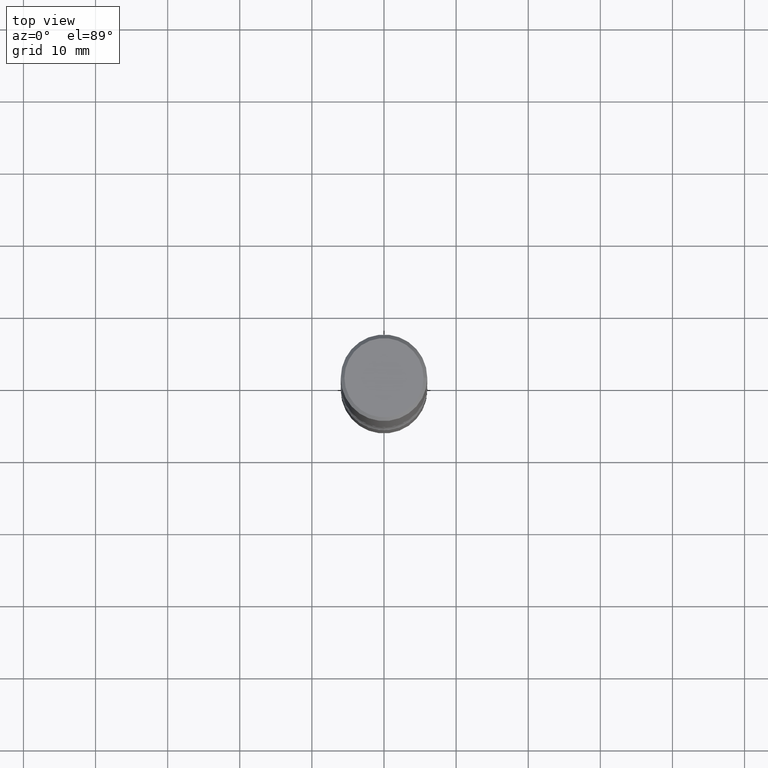
[diagram: clean part render]
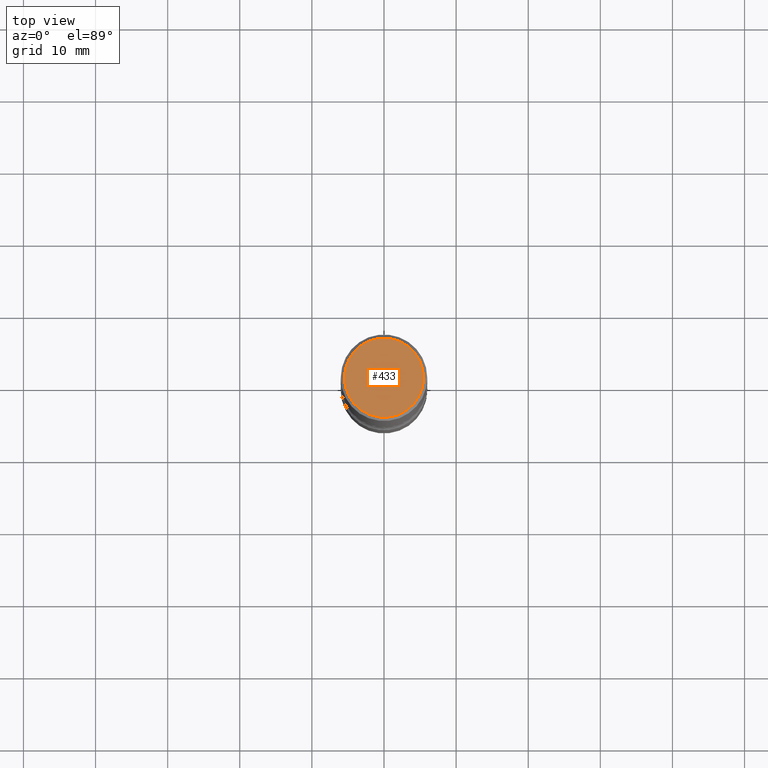
[diagram: same view with one face highlighted and labeled with its STEP entity id]
A machine part, top view. The second image highlights one B-rep face of the part: STEP entity #433.
In plain terms, the highlighted planar face has unit normal (0, -0, -1).
Its self-contained STEP definition (entity closure, byte-faithful):
#5 = DIRECTION ( 'NONE',  ( 1.000000000000000000, -6.982962677686266711E-15, 4.876217060660159599E-29 ) ) ;
#32 = CARTESIAN_POINT ( 'NONE',  ( -1.043851414335219820E-46, 1.490343170380447200E-32, 4.268512490100411279E-18 ) ) ;
#62 = VERTEX_POINT ( 'NONE', #429 ) ;
#82 = AXIS2_PLACEMENT_3D ( 'NONE', #85, #261, #5 ) ;
#85 = CARTESIAN_POINT ( 'NONE',  ( -1.043851414335219820E-46, 1.490343170380447200E-32, 4.268512490100411279E-18 ) ) ;
#111 = AXIS2_PLACEMENT_3D ( 'NONE', #489, #190, #359 ) ;
#127 = VERTEX_POINT ( 'NONE', #230 ) ;
#149 = ORIENTED_EDGE ( 'NONE', *, *, #215, .T. ) ;
#151 = DIRECTION ( 'NONE',  ( -2.445468806185136597E-29, 3.491481338843145583E-15, 1.000000000000000000 ) ) ;
#157 = CIRCLE ( 'NONE', #553, 0.2161999999999998368 ) ;
#180 = EDGE_CURVE ( 'NONE', #127, #62, #157, .T. ) ;
#190 = DIRECTION ( 'NONE',  ( 2.438088387897960049E-29, -3.491481338843145188E-15, -1.000000000000000000 ) ) ;
#215 = EDGE_CURVE ( 'NONE', #62, #127, #424, .T. ) ;
#230 = CARTESIAN_POINT ( 'NONE',  ( 0.2161999999999998368, -1.586759460484351002E-15, 4.268512490111238857E-18 ) ) ;
#261 = DIRECTION ( 'NONE',  ( -2.445468806185136597E-29, 3.491481338843145583E-15, 1.000000000000000000 ) ) ;
#319 = DIRECTION ( 'NONE',  ( 1.000000000000000000, -6.982962677686266711E-15, 4.876217060660159599E-29 ) ) ;
#359 = DIRECTION ( 'NONE',  ( -1.000000000000000000, 6.982962677686265922E-15, -4.876176775795935793E-29 ) ) ;
#401 = PLANE ( 'NONE',  #111 ) ;
#414 = EDGE_LOOP ( 'NONE', ( #149, #479 ) ) ;
#424 = CIRCLE ( 'NONE', #82, 0.2161999999999998368 ) ;
#429 = CARTESIAN_POINT ( 'NONE',  ( -0.2161999999999998368, 1.544631344304201183E-15, 4.268512490089730842E-18 ) ) ;
#433 = ADVANCED_FACE ( 'NONE', ( #443 ), #401, .F. ) ;
#443 = FACE_OUTER_BOUND ( 'NONE', #414, .T. ) ;
#479 = ORIENTED_EDGE ( 'NONE', *, *, #180, .T. ) ;
#489 = CARTESIAN_POINT ( 'NONE',  ( 1.509716530915769534E-15, 0.2161999999999998368, -7.527240092128373149E-16 ) ) ;
#553 = AXIS2_PLACEMENT_3D ( 'NONE', #32, #151, #319 ) ;